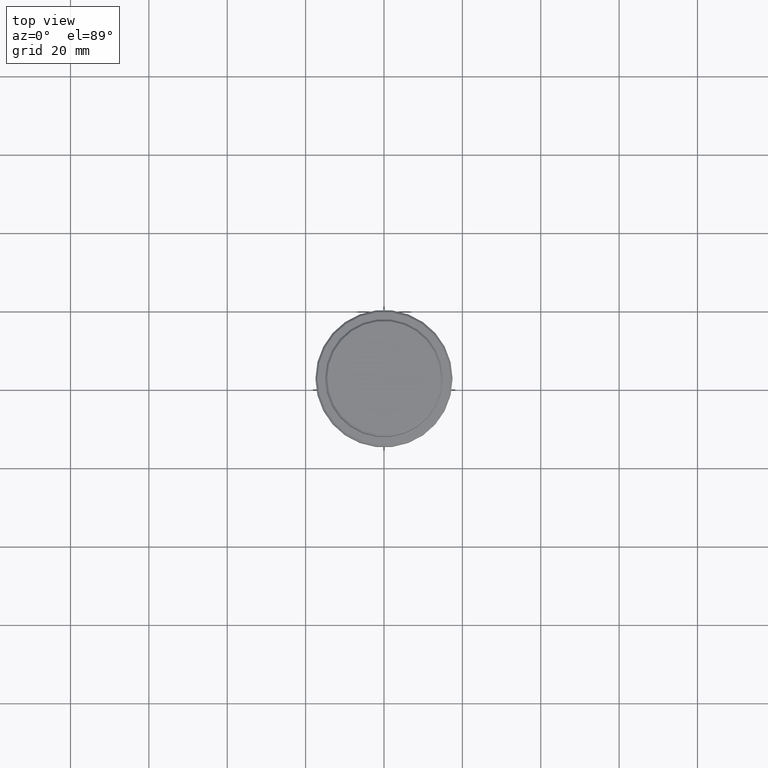
[diagram: clean part render]
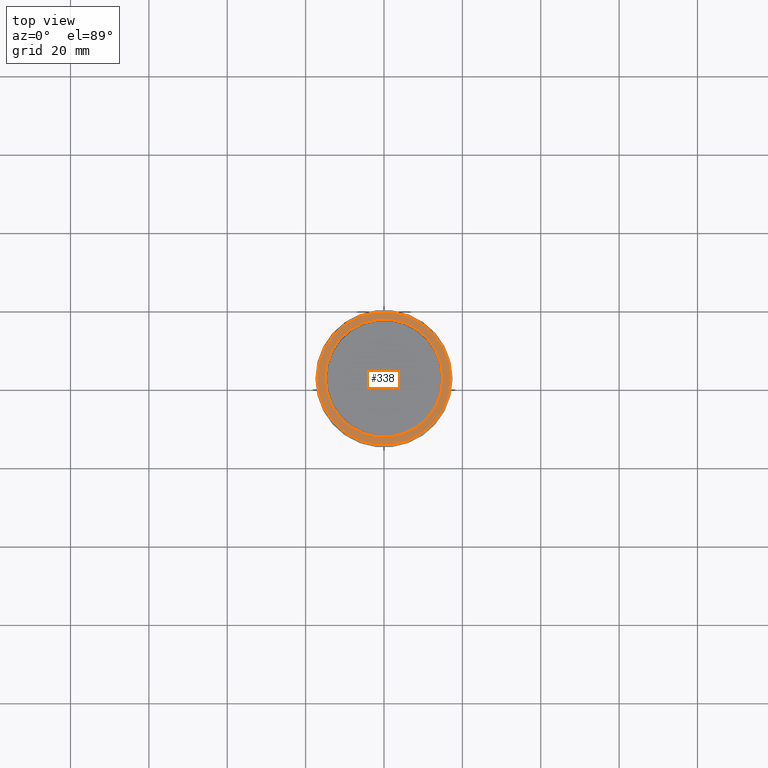
[diagram: same view with one face highlighted and labeled with its STEP entity id]
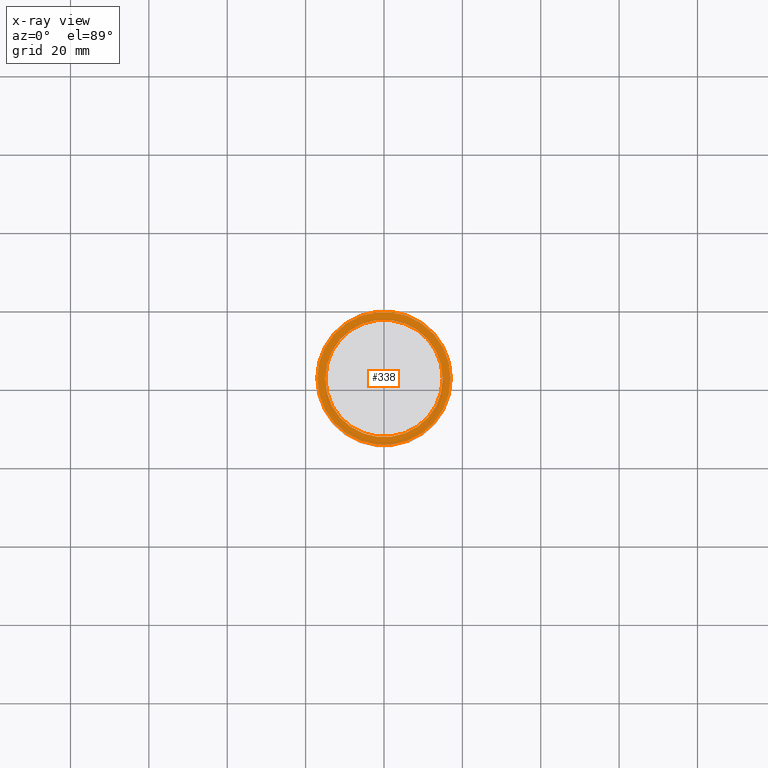
[diagram: x-ray of the same camera — body ghosted, the highlighted face saturated]
A machine part, top view. The second image highlights one B-rep face of the part: STEP entity #338.
The next image is the same camera in x-ray: the body ghosted, the highlighted face saturated — about 0% of this face is hidden behind the body in this view.
In plain terms, the highlighted planar face has unit normal (0, -0, 1).
Its self-contained STEP definition (entity closure, byte-faithful):
#55 = VERTEX_POINT ( 'NONE', #255 ) ;
#57 = DIRECTION ( 'NONE',  ( 1.000000000000000000, 0.000000000000000000, 0.000000000000000000 ) ) ;
#83 = VERTEX_POINT ( 'NONE', #1205 ) ;
#108 = AXIS2_PLACEMENT_3D ( 'NONE', #523, #298, #729 ) ;
#156 = CIRCLE ( 'NONE', #659, 14.99999999999999289 ) ;
#180 = ORIENTED_EDGE ( 'NONE', *, *, #733, .T. ) ;
#255 = CARTESIAN_POINT ( 'NONE',  ( 14.99999999999999289, 0.000000000000000000, -9.000000000000000000 ) ) ;
#298 = DIRECTION ( 'NONE',  ( 0.000000000000000000, -0.000000000000000000, 1.000000000000000000 ) ) ;
#305 = DIRECTION ( 'NONE',  ( 1.000000000000000000, 0.000000000000000000, 0.000000000000000000 ) ) ;
#338 = ADVANCED_FACE ( 'NONE', ( #575, #972 ), #761, .T. ) ;
#349 = CIRCLE ( 'NONE', #498, 14.99999999999999289 ) ;
#367 = ORIENTED_EDGE ( 'NONE', *, *, #666, .T. ) ;
#370 = VERTEX_POINT ( 'NONE', #751 ) ;
#408 = DIRECTION ( 'NONE',  ( -0.000000000000000000, -0.000000000000000000, 1.000000000000000000 ) ) ;
#498 = AXIS2_PLACEMENT_3D ( 'NONE', #621, #1042, #57 ) ;
#523 = CARTESIAN_POINT ( 'NONE',  ( 0.000000000000000000, 14.49999999999999467, -9.000000000000000000 ) ) ;
#529 = EDGE_LOOP ( 'NONE', ( #1321, #367 ) ) ;
#538 = CARTESIAN_POINT ( 'NONE',  ( 0.000000000000000000, 0.000000000000000000, -9.000000000000000000 ) ) ;
#570 = AXIS2_PLACEMENT_3D ( 'NONE', #966, #786, #305 ) ;
#575 = FACE_OUTER_BOUND ( 'NONE', #1094, .T. ) ;
#621 = CARTESIAN_POINT ( 'NONE',  ( 0.000000000000000000, 0.000000000000000000, -9.000000000000000000 ) ) ;
#645 = DIRECTION ( 'NONE',  ( 1.000000000000000000, 0.000000000000000000, 0.000000000000000000 ) ) ;
#647 = ORIENTED_EDGE ( 'NONE', *, *, #1138, .T. ) ;
#659 = AXIS2_PLACEMENT_3D ( 'NONE', #1324, #755, #645 ) ;
#666 = EDGE_CURVE ( 'NONE', #83, #55, #156, .T. ) ;
#729 = DIRECTION ( 'NONE',  ( 1.000000000000000000, 0.000000000000000000, 0.000000000000000000 ) ) ;
#733 = EDGE_CURVE ( 'NONE', #1373, #370, #1293, .T. ) ;
#751 = CARTESIAN_POINT ( 'NONE',  ( 17.00000000000001421, 2.112515728529185250E-15, -9.000000000000000000 ) ) ;
#755 = DIRECTION ( 'NONE',  ( 0.000000000000000000, 0.000000000000000000, -1.000000000000000000 ) ) ;
#761 = PLANE ( 'NONE',  #108 ) ;
#786 = DIRECTION ( 'NONE',  ( -0.000000000000000000, -0.000000000000000000, 1.000000000000000000 ) ) ;
#860 = AXIS2_PLACEMENT_3D ( 'NONE', #538, #408, #1194 ) ;
#948 = CARTESIAN_POINT ( 'NONE',  ( -17.00000000000001421, 0.000000000000000000, -9.000000000000000000 ) ) ;
#966 = CARTESIAN_POINT ( 'NONE',  ( 0.000000000000000000, 0.000000000000000000, -9.000000000000000000 ) ) ;
#972 = FACE_BOUND ( 'NONE', #529, .T. ) ;
#992 = EDGE_CURVE ( 'NONE', #55, #83, #349, .T. ) ;
#1042 = DIRECTION ( 'NONE',  ( 0.000000000000000000, 0.000000000000000000, -1.000000000000000000 ) ) ;
#1094 = EDGE_LOOP ( 'NONE', ( #180, #647 ) ) ;
#1137 = CIRCLE ( 'NONE', #570, 17.00000000000001421 ) ;
#1138 = EDGE_CURVE ( 'NONE', #370, #1373, #1137, .T. ) ;
#1194 = DIRECTION ( 'NONE',  ( 1.000000000000000000, 0.000000000000000000, 0.000000000000000000 ) ) ;
#1205 = CARTESIAN_POINT ( 'NONE',  ( -14.99999999999999289, 1.836970198721028800E-15, -9.000000000000000000 ) ) ;
#1293 = CIRCLE ( 'NONE', #860, 17.00000000000001421 ) ;
#1321 = ORIENTED_EDGE ( 'NONE', *, *, #992, .T. ) ;
#1324 = CARTESIAN_POINT ( 'NONE',  ( 0.000000000000000000, 0.000000000000000000, -9.000000000000000000 ) ) ;
#1373 = VERTEX_POINT ( 'NONE', #948 ) ;